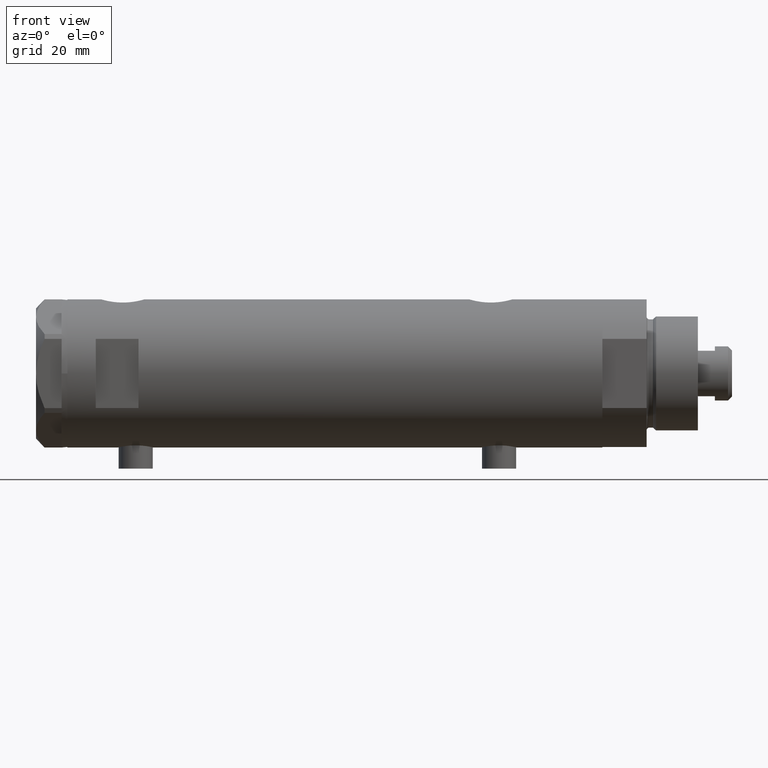
[diagram: clean part render]
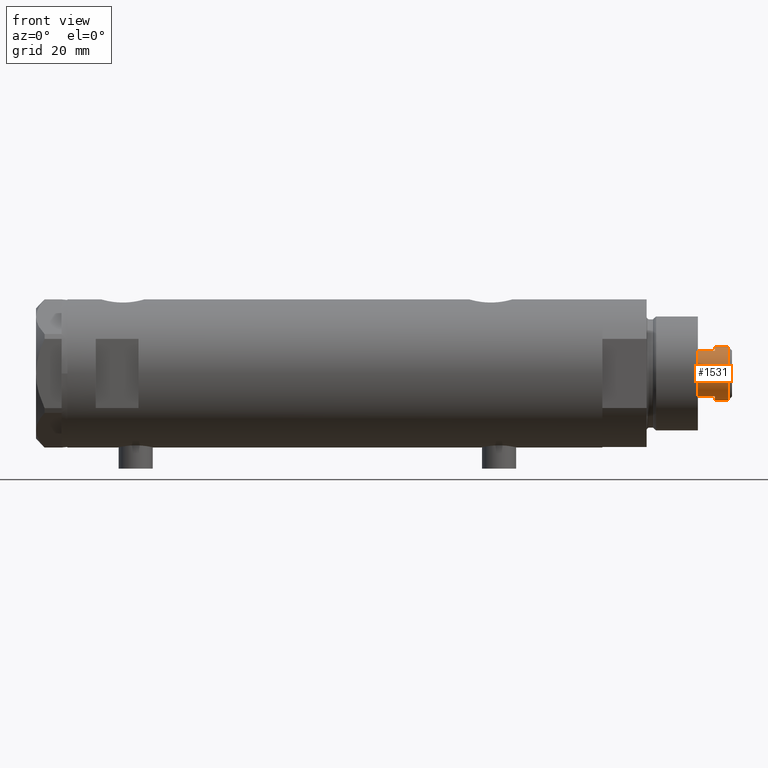
[diagram: same view with one face highlighted and labeled with its STEP entity id]
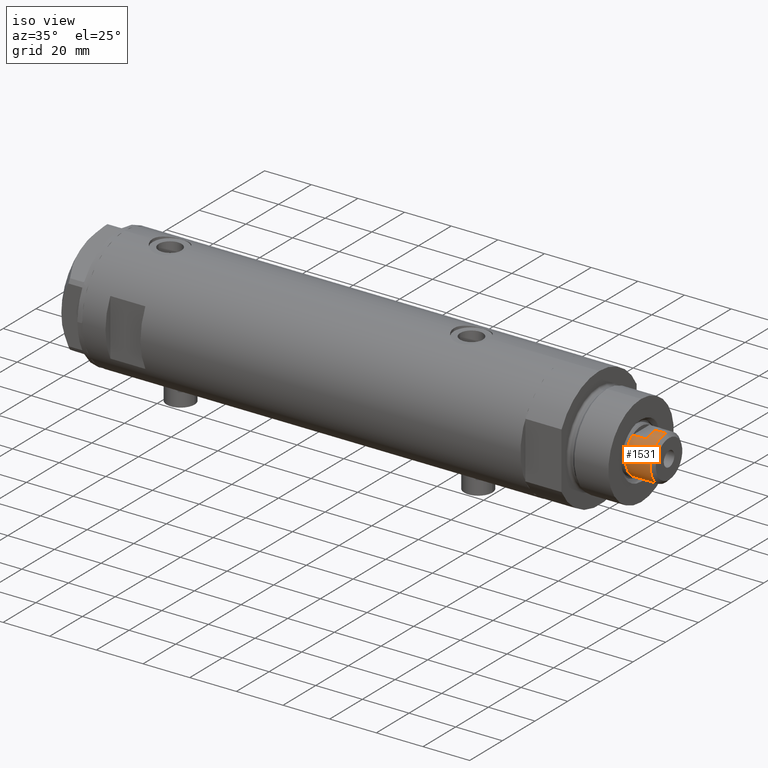
[diagram: same view with one face highlighted and labeled with its STEP entity id]
A machine part, front view. The second image highlights one B-rep face of the part: STEP entity #1531.
A second angle (iso view) of the same face is appended — the face is thin or edge-on in the first view.
In plain terms, the highlighted cylindrical surface (edge-blend (fillet) strip) has radius 9.5 mm, axis along (-1, -0, 0).
Its self-contained STEP definition (entity closure, byte-faithful):
#1 = CARTESIAN_POINT ( 'NONE',  ( -7.982950582334825462, -5.150000000000070521, 197.5999999999999943 ) ) ;
#32 = DIRECTION ( 'NONE',  ( 0.000000000000000000, 0.000000000000000000, 1.000000000000000000 ) ) ;
#129 = CIRCLE ( 'NONE', #2874, 9.500000000000000000 ) ;
#325 = CARTESIAN_POINT ( 'NONE',  ( -9.500000000000001776, 0.000000000000000000, 203.5999999999999943 ) ) ;
#341 = ORIENTED_EDGE ( 'NONE', *, *, #1532, .T. ) ;
#597 = ORIENTED_EDGE ( 'NONE', *, *, #3978, .T. ) ;
#693 = DIRECTION ( 'NONE',  ( 1.000000000000000000, 0.000000000000000000, 0.000000000000000000 ) ) ;
#699 = DIRECTION ( 'NONE',  ( -0.000000000000000000, -0.000000000000000000, -1.000000000000000000 ) ) ;
#742 = VERTEX_POINT ( 'NONE', #3853 ) ;
#774 = DIRECTION ( 'NONE',  ( -0.000000000000000000, -0.000000000000000000, -1.000000000000000000 ) ) ;
#1020 = DIRECTION ( 'NONE',  ( 1.000000000000000000, 0.000000000000000000, 0.000000000000000000 ) ) ;
#1069 = CARTESIAN_POINT ( 'NONE',  ( 0.000000000000000000, 0.000000000000000000, 203.5999999999999943 ) ) ;
#1082 = LINE ( 'NONE', #325, #1435 ) ;
#1099 = EDGE_CURVE ( 'NONE', #3884, #742, #3007, .T. ) ;
#1161 = AXIS2_PLACEMENT_3D ( 'NONE', #3596, #1460, #2952 ) ;
#1178 = VECTOR ( 'NONE', #4363, 1000.000000000000000 ) ;
#1322 = EDGE_CURVE ( 'NONE', #4072, #1799, #1488, .T. ) ;
#1382 = CIRCLE ( 'NONE', #1161, 9.500000000000001776 ) ;
#1418 = VERTEX_POINT ( 'NONE', #2325 ) ;
#1422 = DIRECTION ( 'NONE',  ( 0.000000000000000000, 0.000000000000000000, 1.000000000000000000 ) ) ;
#1435 = VECTOR ( 'NONE', #4792, 1000.000000000000000 ) ;
#1460 = DIRECTION ( 'NONE',  ( 0.000000000000000000, 0.000000000000000000, -1.000000000000000000 ) ) ;
#1488 = LINE ( 'NONE', #4870, #3568 ) ;
#1526 = CIRCLE ( 'NONE', #4406, 9.500000000000001776 ) ;
#1531 = ADVANCED_FACE ( 'NONE', ( #3225 ), #2944, .T. ) ;
#1532 = EDGE_CURVE ( 'NONE', #3884, #1418, #129, .T. ) ;
#1744 = VERTEX_POINT ( 'NONE', #4475 ) ;
#1753 = ORIENTED_EDGE ( 'NONE', *, *, #4642, .F. ) ;
#1766 = CARTESIAN_POINT ( 'NONE',  ( 0.000000000000000000, 0.000000000000000000, 203.5999999999999943 ) ) ;
#1799 = VERTEX_POINT ( 'NONE', #1 ) ;
#1842 = CARTESIAN_POINT ( 'NONE',  ( 9.500000000000001776, 1.163414459189985682E-15, 203.5999999999999943 ) ) ;
#1940 = CARTESIAN_POINT ( 'NONE',  ( 7.982950582334832568, -5.149999999999997691, 203.5999999999999943 ) ) ;
#2098 = VECTOR ( 'NONE', #774, 1000.000000000000000 ) ;
#2151 = VERTEX_POINT ( 'NONE', #2877 ) ;
#2325 = CARTESIAN_POINT ( 'NONE',  ( 9.500000000000000000, 1.163414459189985485E-15, 203.5999999999999943 ) ) ;
#2491 = EDGE_CURVE ( 'NONE', #2946, #2151, #1382, .T. ) ;
#2735 = CIRCLE ( 'NONE', #3181, 9.500000000000000000 ) ;
#2804 = ORIENTED_EDGE ( 'NONE', *, *, #3560, .T. ) ;
#2867 = DIRECTION ( 'NONE',  ( -1.000000000000000000, 0.000000000000000000, 0.000000000000000000 ) ) ;
#2874 = AXIS2_PLACEMENT_3D ( 'NONE', #1766, #1422, #1020 ) ;
#2877 = CARTESIAN_POINT ( 'NONE',  ( -9.500000000000001776, 0.000000000000000000, 208.2000000000000171 ) ) ;
#2944 = CYLINDRICAL_SURFACE ( 'NONE', #4354, 9.500000000000001776 ) ;
#2946 = VERTEX_POINT ( 'NONE', #3856 ) ;
#2952 = DIRECTION ( 'NONE',  ( 1.000000000000000000, 0.000000000000000000, 0.000000000000000000 ) ) ;
#3007 = LINE ( 'NONE', #4135, #2098 ) ;
#3087 = ORIENTED_EDGE ( 'NONE', *, *, #1322, .T. ) ;
#3181 = AXIS2_PLACEMENT_3D ( 'NONE', #4636, #3825, #3774 ) ;
#3225 = FACE_OUTER_BOUND ( 'NONE', #3586, .T. ) ;
#3249 = EDGE_CURVE ( 'NONE', #1744, #4072, #2735, .T. ) ;
#3456 = ORIENTED_EDGE ( 'NONE', *, *, #1099, .F. ) ;
#3485 = ORIENTED_EDGE ( 'NONE', *, *, #3249, .T. ) ;
#3560 = EDGE_CURVE ( 'NONE', #2151, #1744, #1082, .T. ) ;
#3568 = VECTOR ( 'NONE', #4201, 1000.000000000000000 ) ;
#3586 = EDGE_LOOP ( 'NONE', ( #1753, #3907, #2804, #3485, #3087, #597, #3456, #341 ) ) ;
#3596 = CARTESIAN_POINT ( 'NONE',  ( 0.000000000000000000, 0.000000000000000000, 208.2000000000000171 ) ) ;
#3694 = LINE ( 'NONE', #1842, #1178 ) ;
#3774 = DIRECTION ( 'NONE',  ( 1.000000000000000000, 0.000000000000000000, 0.000000000000000000 ) ) ;
#3825 = DIRECTION ( 'NONE',  ( 0.000000000000000000, 0.000000000000000000, 1.000000000000000000 ) ) ;
#3853 = CARTESIAN_POINT ( 'NONE',  ( 7.982950582334834344, -5.150000000000060751, 197.5999999999999943 ) ) ;
#3856 = CARTESIAN_POINT ( 'NONE',  ( 9.500000000000001776, 1.163414459189985682E-15, 208.2000000000000171 ) ) ;
#3884 = VERTEX_POINT ( 'NONE', #1940 ) ;
#3907 = ORIENTED_EDGE ( 'NONE', *, *, #2491, .T. ) ;
#3978 = EDGE_CURVE ( 'NONE', #1799, #742, #1526, .T. ) ;
#4054 = CARTESIAN_POINT ( 'NONE',  ( 0.000000000000000000, 0.000000000000000000, 197.5999999999999943 ) ) ;
#4072 = VERTEX_POINT ( 'NONE', #4186 ) ;
#4135 = CARTESIAN_POINT ( 'NONE',  ( 7.982950582334832568, -5.149999999999997691, 203.5999999999999943 ) ) ;
#4186 = CARTESIAN_POINT ( 'NONE',  ( -7.982950582334825462, -5.150000000000003020, 203.5999999999999943 ) ) ;
#4201 = DIRECTION ( 'NONE',  ( -0.000000000000000000, -0.000000000000000000, -1.000000000000000000 ) ) ;
#4354 = AXIS2_PLACEMENT_3D ( 'NONE', #1069, #699, #2867 ) ;
#4363 = DIRECTION ( 'NONE',  ( -0.000000000000000000, -0.000000000000000000, -1.000000000000000000 ) ) ;
#4406 = AXIS2_PLACEMENT_3D ( 'NONE', #4054, #32, #693 ) ;
#4475 = CARTESIAN_POINT ( 'NONE',  ( -9.500000000000000000, 0.000000000000000000, 203.5999999999999943 ) ) ;
#4636 = CARTESIAN_POINT ( 'NONE',  ( 0.000000000000000000, 0.000000000000000000, 203.5999999999999943 ) ) ;
#4642 = EDGE_CURVE ( 'NONE', #2946, #1418, #3694, .T. ) ;
#4792 = DIRECTION ( 'NONE',  ( -0.000000000000000000, -0.000000000000000000, -1.000000000000000000 ) ) ;
#4870 = CARTESIAN_POINT ( 'NONE',  ( -7.982950582334829015, -5.150000000000001243, 203.5999999999999943 ) ) ;